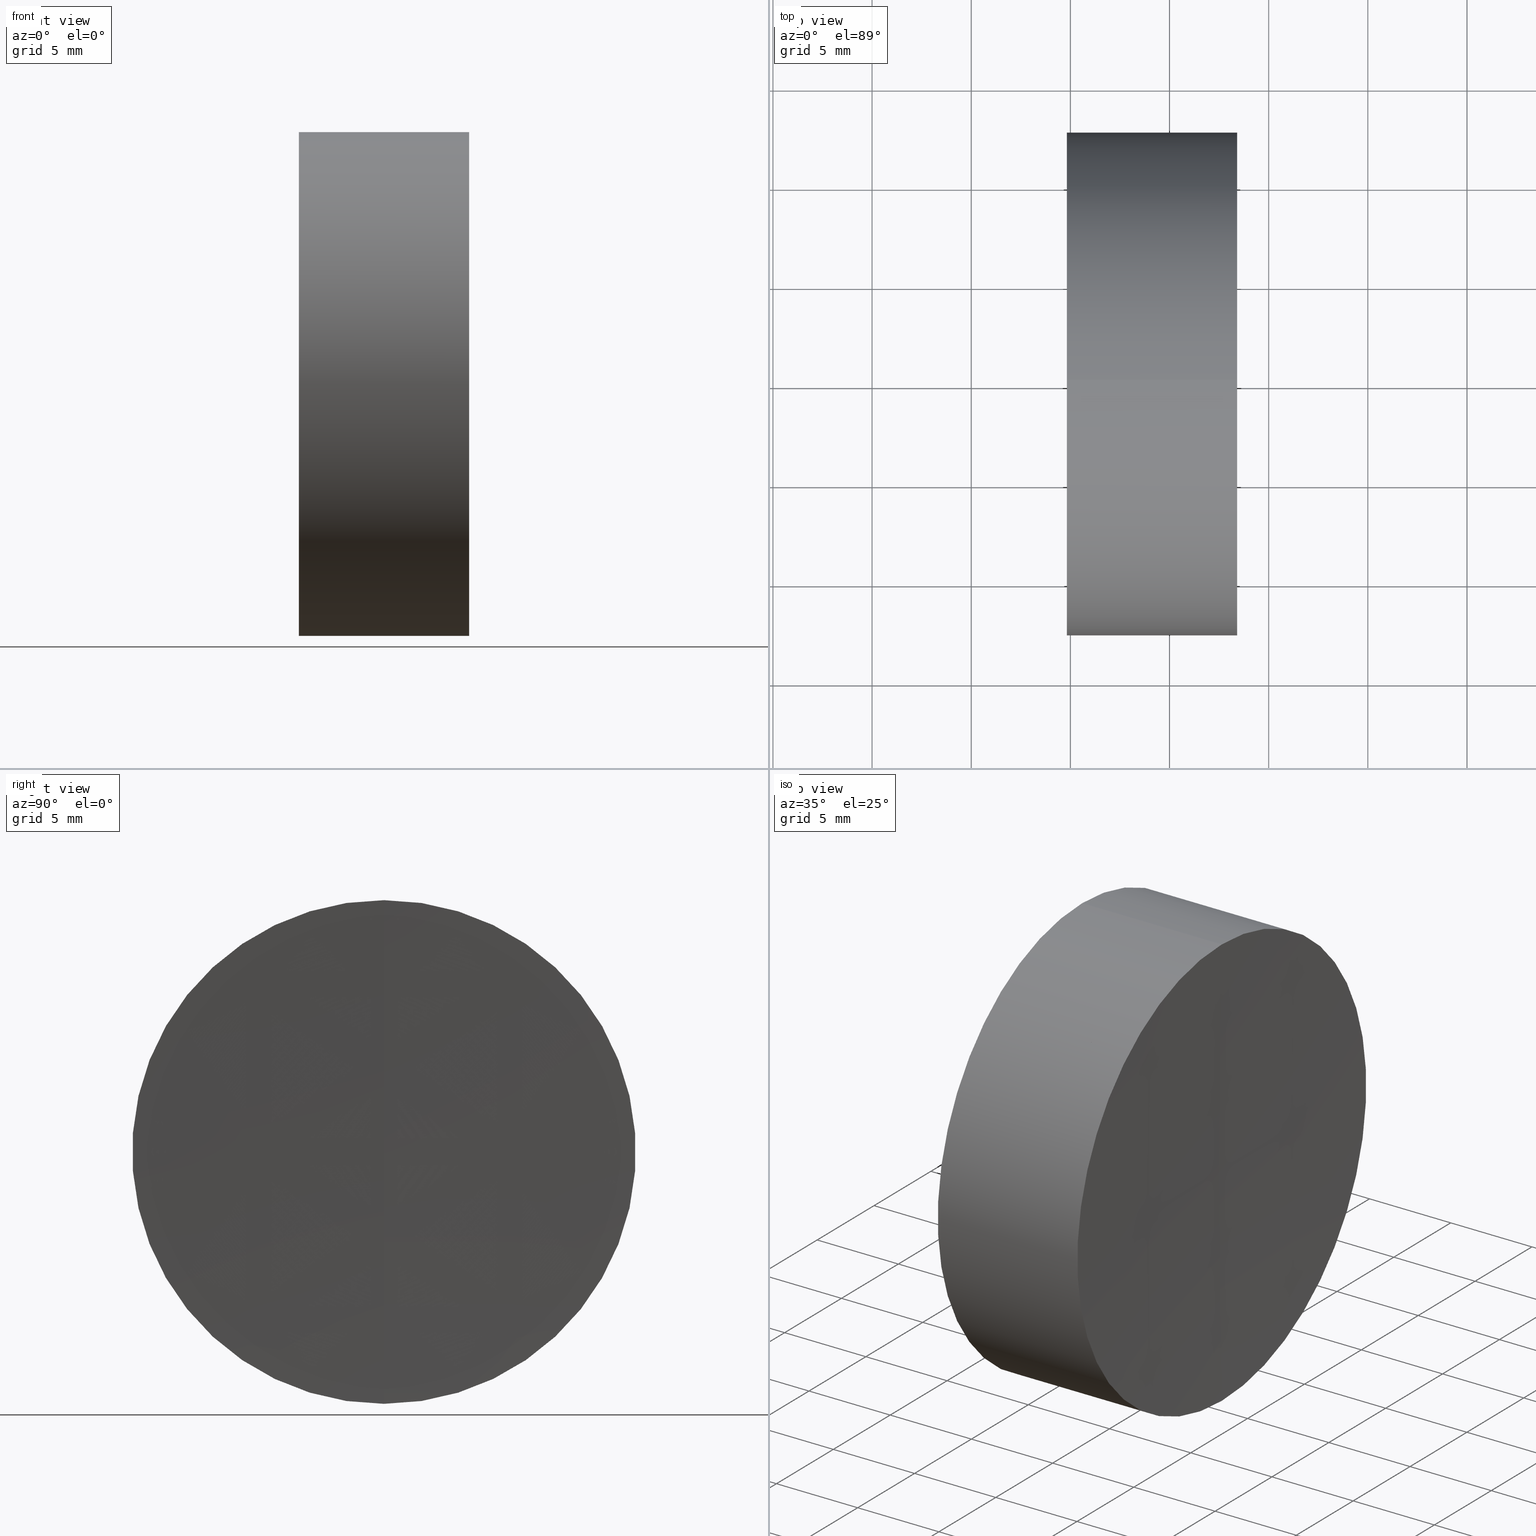
[diagram: canonical four-view strip — front | top / right | iso, engineering-drawing reading convention]
A machine part, canonical four-view strip (front | top / right | iso — engineering-drawing reading convention). The complete STEP part file that produces these views, byte-faithful:
ISO-10303-21;
HEADER;
FILE_DESCRIPTION (( 'STEP AP214' ),
    '1' );
FILE_NAME ('145199.STEP',
    '2019-06-13T07:30:03',
    ( 'user' ),
    ( '΢���й�' ),
    'SwSTEP 2.0',
    'SolidWorks 2016',
    '' );
FILE_SCHEMA (( 'AUTOMOTIVE_DESIGN' ));
ENDSEC;

DATA;
#1 =( GEOMETRIC_REPRESENTATION_CONTEXT ( 3 ) GLOBAL_UNCERTAINTY_ASSIGNED_CONTEXT ( ( #324 ) ) GLOBAL_UNIT_ASSIGNED_CONTEXT ( ( #274, #157, #343 ) ) REPRESENTATION_CONTEXT ( 'NONE', 'WORKASPACE' ) );
#2 = SPHERICAL_SURFACE ( 'NONE', #118, 39.20000000000038700 ) ;
#3 = DIRECTION ( 'NONE',  ( -0.0000000000000000000, -1.000000000000000000, -0.0000000000000000000 ) ) ;
#4 = VERTEX_POINT ( 'NONE', #312 ) ;
#5 = DIRECTION ( 'NONE',  ( -1.000000000000000000, -0.0000000000000000000, -0.0000000000000000000 ) ) ;
#6 = ORIENTED_EDGE ( 'NONE', *, *, #142, .T. ) ;
#7 = VERTEX_POINT ( 'NONE', #134 ) ;
#8 = ADVANCED_FACE ( 'NONE', ( #127 ), #54, .F. ) ;
#9 = AXIS2_PLACEMENT_3D ( 'NONE', #70, #3, #194 ) ;
#10 = ORIENTED_EDGE ( 'NONE', *, *, #331, .T. ) ;
#11 = EDGE_LOOP ( 'NONE', ( #169, #27, #50 ) ) ;
#12 =( GEOMETRIC_REPRESENTATION_CONTEXT ( 3 ) GLOBAL_UNCERTAINTY_ASSIGNED_CONTEXT ( ( #147 ) ) GLOBAL_UNIT_ASSIGNED_CONTEXT ( ( #317, #242, #112 ) ) REPRESENTATION_CONTEXT ( 'NONE', 'WORKASPACE' ) );
#13 = EDGE_LOOP ( 'NONE', ( #109, #281, #149 ) ) ;
#14 = VERTEX_POINT ( 'NONE', #186 ) ;
#15 = DIRECTION ( 'NONE',  ( -0.0000000000000000000, -1.000000000000000000, -0.0000000000000000000 ) ) ;
#16 = CARTESIAN_POINT ( 'NONE',  ( 298.1472495702503800, 0.0000000000000000000, 3.471135893147563700E-022 ) ) ;
#17 = CIRCLE ( 'NONE', #82, 12.69999999999999900 ) ;
#18 = MECHANICAL_DESIGN_GEOMETRIC_PRESENTATION_REPRESENTATION (  '', ( #46 ), #1 ) ;
#19 = CARTESIAN_POINT ( 'NONE',  ( 263.2472495702499500, 0.0000000000000000000, -2.999160011111868400E-014 ) ) ;
#20 = ADVANCED_FACE ( 'NONE', ( #63 ), #75, .F. ) ;
#21 = ORIENTED_EDGE ( 'NONE', *, *, #305, .F. ) ;
#22 = CARTESIAN_POINT ( 'NONE',  ( 0.0000000000000000000, 0.0000000000000000000, 0.0000000000000000000 ) ) ;
#23 = CARTESIAN_POINT ( 'NONE',  ( 254.8214953252485500, 0.0000000000000000000, 12.69999999999999900 ) ) ;
#24 = EDGE_CURVE ( 'NONE', #171, #146, #121, .T. ) ;
#25 = CARTESIAN_POINT ( 'NONE',  ( 254.8214953252485500, 0.0000000000000000000, 0.0000000000000000000 ) ) ;
#26 = DIRECTION ( 'NONE',  ( -1.000000000000000000, -0.0000000000000000000, -0.0000000000000000000 ) ) ;
#27 = ORIENTED_EDGE ( 'NONE', *, *, #175, .T. ) ;
#28 = AXIS2_PLACEMENT_3D ( 'NONE', #311, #154, #51 ) ;
#29 = FILL_AREA_STYLE_COLOUR ( '', #265 ) ;
#30 = PRODUCT_DEFINITION_CONTEXT ( 'detailed design', #64, 'design' ) ;
#31 = VERTEX_POINT ( 'NONE', #57 ) ;
#32 = DIRECTION ( 'NONE',  ( -1.000000000000000000, -0.0000000000000000000, 1.836970198721029700E-016 ) ) ;
#33 = EDGE_LOOP ( 'NONE', ( #21, #271, #258 ) ) ;
#34 = LINE ( 'NONE', #319, #101 ) ;
#35 = DIRECTION ( 'NONE',  ( 2.249639673992786400E-032, 1.000000000000000000, 1.224646799147353200E-016 ) ) ;
#36 = MECHANICAL_DESIGN_GEOMETRIC_PRESENTATION_REPRESENTATION (  '', ( #322 ), #12 ) ;
#37 = FILL_AREA_STYLE_COLOUR ( '', #278 ) ;
#38 = CLOSED_SHELL ( 'NONE', ( #178, #153, #79, #307, #98, #8 ) ) ;
#39 = SPHERICAL_SURFACE ( 'NONE', #287, 39.20000000000038700 ) ;
#40 = ORIENTED_EDGE ( 'NONE', *, *, #124, .F. ) ;
#41 = AXIS2_PLACEMENT_3D ( 'NONE', #115, #325, #93 ) ;
#42 = SPHERICAL_SURFACE ( 'NONE', #240, 39.20000000000040100 ) ;
#43 = EDGE_CURVE ( 'NONE', #31, #86, #150, .T. ) ;
#44 = ORIENTED_EDGE ( 'NONE', *, *, #222, .T. ) ;
#45 = SPHERICAL_SURFACE ( 'NONE', #303, 39.20000000000040100 ) ;
#46 = STYLED_ITEM ( 'NONE', ( #218 ), #250 ) ;
#47 = SURFACE_STYLE_USAGE ( .BOTH. , #292 ) ;
#48 = DIRECTION ( 'NONE',  ( -1.000000000000000000, -0.0000000000000000000, 1.836970198721029700E-016 ) ) ;
#49 = DIRECTION ( 'NONE',  ( 0.0000000000000000000, 0.0000000000000000000, 1.000000000000000000 ) ) ;
#50 = ORIENTED_EDGE ( 'NONE', *, *, #198, .F. ) ;
#51 = DIRECTION ( 'NONE',  ( 0.0000000000000000000, 0.0000000000000000000, 1.000000000000000000 ) ) ;
#52 = EDGE_CURVE ( 'NONE', #31, #326, #106, .T. ) ;
#53 = DIRECTION ( 'NONE',  ( -0.0000000000000000000, -1.000000000000000000, -0.0000000000000000000 ) ) ;
#54 = SPHERICAL_SURFACE ( 'NONE', #183, 489.8000000000000700 ) ;
#55 = PRODUCT_DEFINITION_SHAPE ( 'NONE', 'NONE',  #201 ) ;
#56 = PRESENTATION_LAYER_ASSIGNMENT (  '', '', ( #322 ) ) ;
#57 = CARTESIAN_POINT ( 'NONE',  ( 263.4119260896008000, 0.0000000000000000000, 12.69999999999999900 ) ) ;
#58 = ORIENTED_EDGE ( 'NONE', *, *, #232, .F. ) ;
#59 = DIRECTION ( 'NONE',  ( 0.0000000000000000000, 0.0000000000000000000, -1.000000000000000000 ) ) ;
#60 = UNCERTAINTY_MEASURE_WITH_UNIT (LENGTH_MEASURE( 1.000000000000000100E-005 ), #270, 'distance_accuracy_value', 'NONE');
#61 = CARTESIAN_POINT ( 'NONE',  ( 261.0615380360216000, -1.555301434917140400E-015, 12.70000000000001700 ) ) ;
#62 = CARTESIAN_POINT ( 'NONE',  ( 254.8214953252485500, 1.555301434917138400E-015, -12.69999999999999900 ) ) ;
#63 = FACE_OUTER_BOUND ( 'NONE', #78, .T. ) ;
#64 = APPLICATION_CONTEXT ( 'automotive_design' ) ;
#65 = DIRECTION ( 'NONE',  ( 0.0000000000000000000, 0.0000000000000000000, 1.000000000000000000 ) ) ;
#66 = EDGE_CURVE ( 'NONE', #31, #111, #17, .T. ) ;
#67 = CARTESIAN_POINT ( 'NONE',  ( -0.8160621761658039000, 0.0000000000000000000, 0.0000000000000000000 ) ) ;
#68 = AXIS2_PLACEMENT_3D ( 'NONE', #16, #179, #335 ) ;
#69 = FACE_OUTER_BOUND ( 'NONE', #11, .T. ) ;
#70 = CARTESIAN_POINT ( 'NONE',  ( 753.0472495702500700, 0.0000000000000000000, 0.0000000000000000000 ) ) ;
#71 = DIRECTION ( 'NONE',  ( 0.0000000000000000000, 0.0000000000000000000, -1.000000000000000000 ) ) ;
#72 = ORIENTED_EDGE ( 'NONE', *, *, #66, .T. ) ;
#73 = ORIENTED_EDGE ( 'NONE', *, *, #314, .T. ) ;
#74 = AXIS2_PLACEMENT_3D ( 'NONE', #129, #80, #309 ) ;
#75 = SPHERICAL_SURFACE ( 'NONE', #28, 39.00000000000001400 ) ;
#76 = CLOSED_SHELL ( 'NONE', ( #180, #131, #268, #20, #208, #238 ) ) ;
#77 = AXIS2_PLACEMENT_3D ( 'NONE', #297, #277, #65 ) ;
#78 = EDGE_LOOP ( 'NONE', ( #195, #126, #125 ) ) ;
#79 = ADVANCED_FACE ( 'NONE', ( #69 ), #45, .T. ) ;
#80 = DIRECTION ( 'NONE',  ( -1.000000000000000000, -0.0000000000000000000, 1.836970198721029700E-016 ) ) ;
#81 = FACE_OUTER_BOUND ( 'NONE', #13, .T. ) ;
#82 = AXIS2_PLACEMENT_3D ( 'NONE', #272, #217, #243 ) ;
#83 = DIRECTION ( 'NONE',  ( -1.000000000000000000, -0.0000000000000000000, 1.836970198721029700E-016 ) ) ;
#84 = CARTESIAN_POINT ( 'NONE',  ( 298.1472495702503800, 0.0000000000000000000, 3.471135893147563700E-022 ) ) ;
#85 = FACE_OUTER_BOUND ( 'NONE', #251, .T. ) ;
#86 = VERTEX_POINT ( 'NONE', #19 ) ;
#87 = AXIS2_PLACEMENT_3D ( 'NONE', #197, #35, #119 ) ;
#88 = UNCERTAINTY_MEASURE_WITH_UNIT (LENGTH_MEASURE( 1.000000000000000100E-005 ), #291, 'distance_accuracy_value', 'NONE');
#89 = DIRECTION ( 'NONE',  ( 1.878145495644173900E-016, 0.0000000000000000000, 1.000000000000000000 ) ) ;
#90 = DIRECTION ( 'NONE',  ( 0.0000000000000000000, -1.000000000000000000, -1.224646799147353200E-016 ) ) ;
#91 = EDGE_CURVE ( 'NONE', #146, #14, #230, .T. ) ;
#92 = AXIS2_PLACEMENT_3D ( 'NONE', #138, #26, #159 ) ;
#93 = DIRECTION ( 'NONE',  ( 0.0000000000000000000, 0.0000000000000000000, 1.000000000000000000 ) ) ;
#94 = ORIENTED_EDGE ( 'NONE', *, *, #222, .F. ) ;
#95 = VECTOR ( 'NONE', #289, 1000.000000000000000 ) ;
#96 = AXIS2_PLACEMENT_3D ( 'NONE', #67, #32, #89 ) ;
#97 = ORIENTED_EDGE ( 'NONE', *, *, #52, .T. ) ;
#98 = ADVANCED_FACE ( 'NONE', ( #304 ), #338, .T. ) ;
#99 = ORIENTED_EDGE ( 'NONE', *, *, #337, .T. ) ;
#100 = FILL_AREA_STYLE_COLOUR ( '', #263 ) ;
#101 = VECTOR ( 'NONE', #83, 1000.000000000000000 ) ;
#102 = DIRECTION ( 'NONE',  ( 0.0000000000000000000, 0.0000000000000000000, -1.000000000000000000 ) ) ;
#103 = AXIS2_PLACEMENT_3D ( 'NONE', #299, #190, #248 ) ;
#104 = DIRECTION ( 'NONE',  ( -1.000000000000000000, -0.0000000000000000000, -0.0000000000000000000 ) ) ;
#105 = CARTESIAN_POINT ( 'NONE',  ( 263.4119260896008000, 1.555301434917138400E-015, -12.69999999999999900 ) ) ;
#106 = LINE ( 'NONE', #23, #95 ) ;
#107 = CARTESIAN_POINT ( 'NONE',  ( 298.1472495702503800, 0.0000000000000000000, 3.471135893147563700E-022 ) ) ;
#108 = DIRECTION ( 'NONE',  ( -0.0000000000000000000, -1.000000000000000000, -0.0000000000000000000 ) ) ;
#109 = ORIENTED_EDGE ( 'NONE', *, *, #24, .F. ) ;
#110 = CIRCLE ( 'NONE', #225, 12.69999999999999900 ) ;
#111 = VERTEX_POINT ( 'NONE', #105 ) ;
#112 =( NAMED_UNIT ( * ) SI_UNIT ( $, .STERADIAN. ) SOLID_ANGLE_UNIT ( ) );
#113 = SURFACE_SIDE_STYLE ('',( #185 ) ) ;
#114 = CYLINDRICAL_SURFACE ( 'NONE', #103, 12.69999999999999900 ) ;
#115 = CARTESIAN_POINT ( 'NONE',  ( 217.9472495702503900, 0.0000000000000000000, -7.774854966861718100E-022 ) ) ;
#116 = FILL_AREA_STYLE ('',( #100 ) ) ;
#117 = DIRECTION ( 'NONE',  ( 0.0000000000000000000, 1.224646799147353200E-016, -1.000000000000000000 ) ) ;
#118 = AXIS2_PLACEMENT_3D ( 'NONE', #224, #255, #253 ) ;
#119 = DIRECTION ( 'NONE',  ( 0.0000000000000000000, -1.224646799147353200E-016, 1.000000000000000000 ) ) ;
#120 = PRESENTATION_STYLE_ASSIGNMENT (( #47 ) ) ;
#121 = CIRCLE ( 'NONE', #211, 12.70000000000004700 ) ;
#122 = PRODUCT_DEFINITION_FORMATION_WITH_SPECIFIED_SOURCE ( '�κ�', '', #210, .NOT_KNOWN. ) ;
#123 = CIRCLE ( 'NONE', #260, 12.70000000000004700 ) ;
#124 = EDGE_CURVE ( 'NONE', #4, #173, #215, .T. ) ;
#125 = ORIENTED_EDGE ( 'NONE', *, *, #206, .T. ) ;
#126 = ORIENTED_EDGE ( 'NONE', *, *, #232, .T. ) ;
#127 = FACE_OUTER_BOUND ( 'NONE', #321, .T. ) ;
#128 = CARTESIAN_POINT ( 'NONE',  ( -0.8160621761658015700, 0.0000000000000000000, 12.70000000000004700 ) ) ;
#129 = CARTESIAN_POINT ( 'NONE',  ( -0.8160621761658039000, 0.0000000000000000000, 0.0000000000000000000 ) ) ;
#130 = CARTESIAN_POINT ( 'NONE',  ( 753.0472495702500700, 0.0000000000000000000, 0.0000000000000000000 ) ) ;
#131 = ADVANCED_FACE ( 'NONE', ( #333 ), #191, .T. ) ;
#132 = AXIS2_PLACEMENT_3D ( 'NONE', #161, #221, #347 ) ;
#133 = CARTESIAN_POINT ( 'NONE',  ( 261.0615380360216000, 0.0000000000000000000, -4.810613473023683200E-014 ) ) ;
#134 = CARTESIAN_POINT ( 'NONE',  ( 261.0615380360216000, 0.0000000000000000000, -12.70000000000001700 ) ) ;
#135 = EDGE_CURVE ( 'NONE', #7, #326, #176, .T. ) ;
#136 = CARTESIAN_POINT ( 'NONE',  ( 261.0615380360216000, 1.555301434917144500E-015, -12.70000000000009700 ) ) ;
#137 = ORIENTED_EDGE ( 'NONE', *, *, #295, .F. ) ;
#138 = CARTESIAN_POINT ( 'NONE',  ( 261.0615380360216000, 0.0000000000000000000, 0.0000000000000000000 ) ) ;
#139 =( GEOMETRIC_REPRESENTATION_CONTEXT ( 3 ) GLOBAL_UNCERTAINTY_ASSIGNED_CONTEXT ( ( #88 ) ) GLOBAL_UNIT_ASSIGNED_CONTEXT ( ( #291, #332, #296 ) ) REPRESENTATION_CONTEXT ( 'NONE', 'WORKASPACE' ) );
#140 = APPLICATION_PROTOCOL_DEFINITION ( 'draft international standard', 'automotive_design', 1998, #189 ) ;
#141 = CARTESIAN_POINT ( 'NONE',  ( 298.1472495702503800, 0.0000000000000000000, 3.471135893147563700E-022 ) ) ;
#142 = EDGE_CURVE ( 'NONE', #111, #86, #285, .T. ) ;
#143 = DIRECTION ( 'NONE',  ( 0.0000000000000000000, 0.0000000000000000000, 1.000000000000000000 ) ) ;
#144 = EDGE_LOOP ( 'NONE', ( #145, #44, #193 ) ) ;
#145 = ORIENTED_EDGE ( 'NONE', *, *, #175, .F. ) ;
#146 = VERTEX_POINT ( 'NONE', #136 ) ;
#147 = UNCERTAINTY_MEASURE_WITH_UNIT (LENGTH_MEASURE( 1.000000000000000100E-005 ), #317, 'distance_accuracy_value', 'NONE');
#148 = AXIS2_PLACEMENT_3D ( 'NONE', #199, #163, #71 ) ;
#149 = ORIENTED_EDGE ( 'NONE', *, *, #91, .F. ) ;
#150 = CIRCLE ( 'NONE', #205, 489.8000000000000700 ) ;
#151 = DIRECTION ( 'NONE',  ( -2.249639673992786400E-032, -1.000000000000000000, -1.224646799147353200E-016 ) ) ;
#152 = CIRCLE ( 'NONE', #77, 39.20000000000040100 ) ;
#153 = ADVANCED_FACE ( 'NONE', ( #85 ), #114, .T. ) ;
#154 = DIRECTION ( 'NONE',  ( -0.0000000000000000000, 1.000000000000000000, 0.0000000000000000000 ) ) ;
#155 = EDGE_LOOP ( 'NONE', ( #181, #73, #308, #235 ) ) ;
#156 = AXIS2_PLACEMENT_3D ( 'NONE', #22, #187, #342 ) ;
#157 =( NAMED_UNIT ( * ) PLANE_ANGLE_UNIT ( ) SI_UNIT ( $, .RADIAN. ) );
#158 = FILL_AREA_STYLE ('',( #37 ) ) ;
#159 = DIRECTION ( 'NONE',  ( 0.0000000000000000000, 0.0000000000000000000, 1.000000000000000000 ) ) ;
#160 = CIRCLE ( 'NONE', #318, 39.20000000000040100 ) ;
#161 = CARTESIAN_POINT ( 'NONE',  ( 254.8214953252485500, 0.0000000000000000000, -4.695985748039317800E-014 ) ) ;
#162 =( NAMED_UNIT ( * ) SI_UNIT ( $, .STERADIAN. ) SOLID_ANGLE_UNIT ( ) );
#163 = DIRECTION ( 'NONE',  ( 0.0000000000000000000, -1.000000000000000000, 0.0000000000000000000 ) ) ;
#164 = AXIS2_PLACEMENT_3D ( 'NONE', #202, #5, #320 ) ;
#165 = DIRECTION ( 'NONE',  ( 0.0000000000000000000, 0.0000000000000000000, 1.000000000000000000 ) ) ;
#166 = DIRECTION ( 'NONE',  ( 0.0000000000000000000, 1.000000000000000000, -0.0000000000000000000 ) ) ;
#167 = CARTESIAN_POINT ( 'NONE',  ( 254.8214953252485500, 0.0000000000000000000, 12.69999999999999900 ) ) ;
#168 = EDGE_CURVE ( 'NONE', #341, #4, #313, .T. ) ;
#169 = ORIENTED_EDGE ( 'NONE', *, *, #135, .T. ) ;
#170 = SHAPE_DEFINITION_REPRESENTATION ( #55, #244 ) ;
#171 = VERTEX_POINT ( 'NONE', #226 ) ;
#172 = MECHANICAL_DESIGN_GEOMETRIC_PRESENTATION_REPRESENTATION (  '', ( #276 ), #139 ) ;
#173 = VERTEX_POINT ( 'NONE', #167 ) ;
#174 = FACE_OUTER_BOUND ( 'NONE', #144, .T. ) ;
#175 = EDGE_CURVE ( 'NONE', #326, #293, #160, .T. ) ;
#176 = CIRCLE ( 'NONE', #92, 12.69999999999999900 ) ;
#177 = FACE_OUTER_BOUND ( 'NONE', #231, .T. ) ;
#178 = ADVANCED_FACE ( 'NONE', ( #177 ), #204, .F. ) ;
#179 = DIRECTION ( 'NONE',  ( -0.0000000000000000000, 1.000000000000000000, 0.0000000000000000000 ) ) ;
#180 = ADVANCED_FACE ( 'NONE', ( #81 ), #2, .F. ) ;
#181 = ORIENTED_EDGE ( 'NONE', *, *, #24, .T. ) ;
#182 = DIRECTION ( 'NONE',  ( 0.0000000000000000000, 1.224646799147353200E-016, -1.000000000000000000 ) ) ;
#183 = AXIS2_PLACEMENT_3D ( 'NONE', #339, #53, #184 ) ;
#184 = DIRECTION ( 'NONE',  ( 0.0000000000000000000, 0.0000000000000000000, -1.000000000000000000 ) ) ;
#185 = SURFACE_STYLE_FILL_AREA ( #249 ) ;
#186 = CARTESIAN_POINT ( 'NONE',  ( 258.9472495702499900, 0.0000000000000000000, 4.800615799771260600E-015 ) ) ;
#187 = DIRECTION ( 'NONE',  ( 0.0000000000000000000, 0.0000000000000000000, 1.000000000000000000 ) ) ;
#188 = ORIENTED_EDGE ( 'NONE', *, *, #142, .F. ) ;
#189 = APPLICATION_CONTEXT ( 'automotive_design' ) ;
#190 = DIRECTION ( 'NONE',  ( -1.000000000000000000, -0.0000000000000000000, -0.0000000000000000000 ) ) ;
#191 = CYLINDRICAL_SURFACE ( 'NONE', #74, 12.70000000000004700 ) ;
#192 = AXIS2_PLACEMENT_3D ( 'NONE', #25, #213, #49 ) ;
#193 = ORIENTED_EDGE ( 'NONE', *, *, #198, .T. ) ;
#194 = DIRECTION ( 'NONE',  ( 0.0000000000000000000, 0.0000000000000000000, -1.000000000000000000 ) ) ;
#195 = ORIENTED_EDGE ( 'NONE', *, *, #168, .F. ) ;
#196 = CARTESIAN_POINT ( 'NONE',  ( 263.4119260896008000, 0.0000000000000000000, 0.0000000000000000000 ) ) ;
#197 = CARTESIAN_POINT ( 'NONE',  ( 217.9472495702503900, 0.0000000000000000000, -7.774854966861718100E-022 ) ) ;
#198 = EDGE_CURVE ( 'NONE', #7, #293, #152, .T. ) ;
#199 = CARTESIAN_POINT ( 'NONE',  ( 217.9472495702503900, 0.0000000000000000000, -7.774854966861718100E-022 ) ) ;
#200 = EDGE_LOOP ( 'NONE', ( #137, #99, #97, #269 ) ) ;
#201 = PRODUCT_DEFINITION ( 'δ֪', '', #122, #30 ) ;
#202 = CARTESIAN_POINT ( 'NONE',  ( 261.0615380360216000, 0.0000000000000000000, 0.0000000000000000000 ) ) ;
#203 = SURFACE_STYLE_FILL_AREA ( #158 ) ;
#204 = SPHERICAL_SURFACE ( 'NONE', #9, 489.8000000000000700 ) ;
#205 = AXIS2_PLACEMENT_3D ( 'NONE', #130, #336, #182 ) ;
#206 = EDGE_CURVE ( 'NONE', #173, #4, #275, .T. ) ;
#207 = SPHERICAL_SURFACE ( 'NONE', #41, 39.00000000000001400 ) ;
#208 = ADVANCED_FACE ( 'NONE', ( #223 ), #247, .T. ) ;
#209 = DIRECTION ( 'NONE',  ( 0.0000000000000000000, 0.0000000000000000000, 1.000000000000000000 ) ) ;
#210 = PRODUCT ( '145199', '145199', '', ( #273 ) ) ;
#211 = AXIS2_PLACEMENT_3D ( 'NONE', #133, #214, #266 ) ;
#212 = DIRECTION ( 'NONE',  ( -1.000000000000000000, -0.0000000000000000000, 1.836970198721029700E-016 ) ) ;
#213 = DIRECTION ( 'NONE',  ( -1.000000000000000000, -0.0000000000000000000, -0.0000000000000000000 ) ) ;
#214 = DIRECTION ( 'NONE',  ( -1.000000000000000000, -0.0000000000000000000, 1.836970198721029700E-016 ) ) ;
#215 = CIRCLE ( 'NONE', #229, 12.70000000000004500 ) ;
#216 = ORIENTED_EDGE ( 'NONE', *, *, #337, .F. ) ;
#217 = DIRECTION ( 'NONE',  ( -1.000000000000000000, -0.0000000000000000000, -0.0000000000000000000 ) ) ;
#218 = PRESENTATION_STYLE_ASSIGNMENT (( #282 ) ) ;
#219 = DIRECTION ( 'NONE',  ( -0.0000000000000000000, -1.000000000000000000, -0.0000000000000000000 ) ) ;
#220 = CARTESIAN_POINT ( 'NONE',  ( 256.9472495702503900, 0.0000000000000000000, -4.776123294160174900E-015 ) ) ;
#221 = DIRECTION ( 'NONE',  ( -1.000000000000000000, -0.0000000000000000000, 1.836970198721029700E-016 ) ) ;
#222 = EDGE_CURVE ( 'NONE', #326, #7, #259, .T. ) ;
#223 = FACE_OUTER_BOUND ( 'NONE', #298, .T. ) ;
#224 = CARTESIAN_POINT ( 'NONE',  ( 298.1472495702503800, 0.0000000000000000000, 3.471135893147563700E-022 ) ) ;
#225 = AXIS2_PLACEMENT_3D ( 'NONE', #196, #104, #165 ) ;
#226 = CARTESIAN_POINT ( 'NONE',  ( 261.0615380360216000, 0.0000000000000000000, 12.69999999999999900 ) ) ;
#227 = CARTESIAN_POINT ( 'NONE',  ( 258.9472495702499900, 0.0000000000000000000, -2.400307379215247300E-015 ) ) ;
#228 = ORIENTED_EDGE ( 'NONE', *, *, #295, .T. ) ;
#229 = AXIS2_PLACEMENT_3D ( 'NONE', #237, #48, #316 ) ;
#230 = CIRCLE ( 'NONE', #68, 39.20000000000038700 ) ;
#231 = EDGE_LOOP ( 'NONE', ( #306, #239, #188 ) ) ;
#232 = EDGE_CURVE ( 'NONE', #341, #173, #344, .T. ) ;
#233 = PRODUCT_RELATED_PRODUCT_CATEGORY ( 'part', '', ( #210 ) ) ;
#234 = DIRECTION ( 'NONE',  ( -1.000000000000000000, -0.0000000000000000000, 1.836970198721029700E-016 ) ) ;
#235 = ORIENTED_EDGE ( 'NONE', *, *, #345, .F. ) ;
#236 = LINE ( 'NONE', #128, #302 ) ;
#237 = CARTESIAN_POINT ( 'NONE',  ( 254.8214953252485500, 0.0000000000000000000, -4.695985748039317800E-014 ) ) ;
#238 = ADVANCED_FACE ( 'NONE', ( #261 ), #39, .F. ) ;
#239 = ORIENTED_EDGE ( 'NONE', *, *, #43, .T. ) ;
#240 = AXIS2_PLACEMENT_3D ( 'NONE', #340, #15, #102 ) ;
#241 = PRESENTATION_STYLE_ASSIGNMENT (( #294 ) ) ;
#242 =( NAMED_UNIT ( * ) PLANE_ANGLE_UNIT ( ) SI_UNIT ( $, .RADIAN. ) );
#243 = DIRECTION ( 'NONE',  ( 0.0000000000000000000, 0.0000000000000000000, 1.000000000000000000 ) ) ;
#244 = ADVANCED_BREP_SHAPE_REPRESENTATION ( '145199', ( #301, #250, #156 ), #290 ) ;
#245 = EDGE_LOOP ( 'NONE', ( #58, #315, #286 ) ) ;
#246 = DIRECTION ( 'NONE',  ( 0.0000000000000000000, 0.0000000000000000000, -1.000000000000000000 ) ) ;
#247 = CYLINDRICAL_SURFACE ( 'NONE', #96, 12.70000000000004700 ) ;
#248 = DIRECTION ( 'NONE',  ( 0.0000000000000000000, 0.0000000000000000000, 1.000000000000000000 ) ) ;
#249 = FILL_AREA_STYLE ('',( #29 ) ) ;
#250 = MANIFOLD_SOLID_BREP ( '��ת3', #38 ) ;
#251 = EDGE_LOOP ( 'NONE', ( #72, #228, #94, #330 ) ) ;
#252 = APPLICATION_PROTOCOL_DEFINITION ( 'draft international standard', 'automotive_design', 1998, #64 ) ;
#253 = DIRECTION ( 'NONE',  ( 0.0000000000000000000, 0.0000000000000000000, -1.000000000000000000 ) ) ;
#254 = CIRCLE ( 'NONE', #279, 39.20000000000038700 ) ;
#255 = DIRECTION ( 'NONE',  ( -0.0000000000000000000, -1.000000000000000000, -0.0000000000000000000 ) ) ;
#256 = LINE ( 'NONE', #62, #267 ) ;
#257 = SURFACE_SIDE_STYLE ('',( #203 ) ) ;
#258 = ORIENTED_EDGE ( 'NONE', *, *, #91, .T. ) ;
#259 = CIRCLE ( 'NONE', #164, 12.69999999999999900 ) ;
#260 = AXIS2_PLACEMENT_3D ( 'NONE', #264, #212, #209 ) ;
#261 = FACE_OUTER_BOUND ( 'NONE', #33, .T. ) ;
#262 = ORIENTED_EDGE ( 'NONE', *, *, #43, .F. ) ;
#263 = COLOUR_RGB ( '',1.000000000000000000, 1.000000000000000000, 1.000000000000000000 ) ;
#264 = CARTESIAN_POINT ( 'NONE',  ( 261.0615380360216000, 0.0000000000000000000, -4.810613473023683200E-014 ) ) ;
#265 = COLOUR_RGB ( '',1.000000000000000000, 1.000000000000000000, 1.000000000000000000 ) ;
#266 = DIRECTION ( 'NONE',  ( 0.0000000000000000000, 0.0000000000000000000, 1.000000000000000000 ) ) ;
#267 = VECTOR ( 'NONE', #280, 1000.000000000000000 ) ;
#268 = ADVANCED_FACE ( 'NONE', ( #283 ), #207, .F. ) ;
#269 = ORIENTED_EDGE ( 'NONE', *, *, #135, .F. ) ;
#270 =( LENGTH_UNIT ( ) NAMED_UNIT ( * ) SI_UNIT ( .MILLI., .METRE. ) );
#271 = ORIENTED_EDGE ( 'NONE', *, *, #331, .F. ) ;
#272 = CARTESIAN_POINT ( 'NONE',  ( 263.4119260896008000, 0.0000000000000000000, 0.0000000000000000000 ) ) ;
#273 = PRODUCT_CONTEXT ( 'NONE', #189, 'mechanical' ) ;
#274 =( LENGTH_UNIT ( ) NAMED_UNIT ( * ) SI_UNIT ( .MILLI., .METRE. ) );
#275 = CIRCLE ( 'NONE', #132, 12.70000000000004500 ) ;
#276 = STYLED_ITEM ( 'NONE', ( #241 ), #301 ) ;
#277 = DIRECTION ( 'NONE',  ( 0.0000000000000000000, 1.000000000000000000, -0.0000000000000000000 ) ) ;
#278 = COLOUR_RGB ( '',1.000000000000000000, 1.000000000000000000, 1.000000000000000000 ) ;
#279 = AXIS2_PLACEMENT_3D ( 'NONE', #107, #151, #346 ) ;
#280 = DIRECTION ( 'NONE',  ( -1.000000000000000000, -0.0000000000000000000, -0.0000000000000000000 ) ) ;
#281 = ORIENTED_EDGE ( 'NONE', *, *, #305, .T. ) ;
#282 = SURFACE_STYLE_USAGE ( .BOTH. , #257 ) ;
#283 = FACE_OUTER_BOUND ( 'NONE', #245, .T. ) ;
#284 = PRESENTATION_LAYER_ASSIGNMENT (  '', '', ( #276 ) ) ;
#285 = CIRCLE ( 'NONE', #329, 489.8000000000000700 ) ;
#286 = ORIENTED_EDGE ( 'NONE', *, *, #124, .T. ) ;
#287 = AXIS2_PLACEMENT_3D ( 'NONE', #300, #219, #246 ) ;
#288 =( NAMED_UNIT ( * ) PLANE_ANGLE_UNIT ( ) SI_UNIT ( $, .RADIAN. ) );
#289 = DIRECTION ( 'NONE',  ( -1.000000000000000000, -0.0000000000000000000, -0.0000000000000000000 ) ) ;
#290 =( GEOMETRIC_REPRESENTATION_CONTEXT ( 3 ) GLOBAL_UNCERTAINTY_ASSIGNED_CONTEXT ( ( #60 ) ) GLOBAL_UNIT_ASSIGNED_CONTEXT ( ( #270, #288, #162 ) ) REPRESENTATION_CONTEXT ( 'NONE', 'WORKASPACE' ) );
#291 =( LENGTH_UNIT ( ) NAMED_UNIT ( * ) SI_UNIT ( .MILLI., .METRE. ) );
#292 = SURFACE_SIDE_STYLE ('',( #327 ) ) ;
#293 = VERTEX_POINT ( 'NONE', #227 ) ;
#294 = SURFACE_STYLE_USAGE ( .BOTH. , #113 ) ;
#295 = EDGE_CURVE ( 'NONE', #111, #7, #256, .T. ) ;
#296 =( NAMED_UNIT ( * ) SI_UNIT ( $, .STERADIAN. ) SOLID_ANGLE_UNIT ( ) );
#297 = CARTESIAN_POINT ( 'NONE',  ( 298.1472495702503800, 0.0000000000000000000, 3.471135893147563700E-022 ) ) ;
#298 = EDGE_LOOP ( 'NONE', ( #328, #10, #310, #40 ) ) ;
#299 = CARTESIAN_POINT ( 'NONE',  ( 254.8214953252485500, 0.0000000000000000000, 0.0000000000000000000 ) ) ;
#300 = CARTESIAN_POINT ( 'NONE',  ( 298.1472495702503800, 0.0000000000000000000, 3.471135893147563700E-022 ) ) ;
#301 = MANIFOLD_SOLID_BREP ( '��ת1', #76 ) ;
#302 = VECTOR ( 'NONE', #234, 1000.000000000000000 ) ;
#303 = AXIS2_PLACEMENT_3D ( 'NONE', #84, #108, #59 ) ;
#304 = FACE_OUTER_BOUND ( 'NONE', #200, .T. ) ;
#305 = EDGE_CURVE ( 'NONE', #171, #14, #254, .T. ) ;
#306 = ORIENTED_EDGE ( 'NONE', *, *, #66, .F. ) ;
#307 = ADVANCED_FACE ( 'NONE', ( #174 ), #42, .T. ) ;
#308 = ORIENTED_EDGE ( 'NONE', *, *, #206, .F. ) ;
#309 = DIRECTION ( 'NONE',  ( 1.878145495644173900E-016, 0.0000000000000000000, 1.000000000000000000 ) ) ;
#310 = ORIENTED_EDGE ( 'NONE', *, *, #345, .T. ) ;
#311 = CARTESIAN_POINT ( 'NONE',  ( 217.9472495702503900, 0.0000000000000000000, -7.774854966861718100E-022 ) ) ;
#312 = CARTESIAN_POINT ( 'NONE',  ( 254.8214953252485500, 1.555301434917144200E-015, -12.70000000000005100 ) ) ;
#313 = CIRCLE ( 'NONE', #87, 39.00000000000001400 ) ;
#314 = EDGE_CURVE ( 'NONE', #146, #4, #34, .T. ) ;
#315 = ORIENTED_EDGE ( 'NONE', *, *, #168, .T. ) ;
#316 = DIRECTION ( 'NONE',  ( 0.0000000000000000000, 0.0000000000000000000, 1.000000000000000000 ) ) ;
#317 =( LENGTH_UNIT ( ) NAMED_UNIT ( * ) SI_UNIT ( .MILLI., .METRE. ) );
#318 = AXIS2_PLACEMENT_3D ( 'NONE', #141, #90, #117 ) ;
#319 = CARTESIAN_POINT ( 'NONE',  ( -0.8160621761658063400, 1.555301434917144500E-015, -12.70000000000004700 ) ) ;
#320 = DIRECTION ( 'NONE',  ( 0.0000000000000000000, 0.0000000000000000000, 1.000000000000000000 ) ) ;
#321 = EDGE_LOOP ( 'NONE', ( #262, #216, #6 ) ) ;
#322 = STYLED_ITEM ( 'NONE', ( #120 ), #244 ) ;
#323 = CARTESIAN_POINT ( 'NONE',  ( 753.0472495702500700, 0.0000000000000000000, 0.0000000000000000000 ) ) ;
#324 = UNCERTAINTY_MEASURE_WITH_UNIT (LENGTH_MEASURE( 1.000000000000000100E-005 ), #274, 'distance_accuracy_value', 'NONE');
#325 = DIRECTION ( 'NONE',  ( -0.0000000000000000000, 1.000000000000000000, 0.0000000000000000000 ) ) ;
#326 = VERTEX_POINT ( 'NONE', #61 ) ;
#327 = SURFACE_STYLE_FILL_AREA ( #116 ) ;
#328 = ORIENTED_EDGE ( 'NONE', *, *, #314, .F. ) ;
#329 = AXIS2_PLACEMENT_3D ( 'NONE', #323, #166, #143 ) ;
#330 = ORIENTED_EDGE ( 'NONE', *, *, #52, .F. ) ;
#331 = EDGE_CURVE ( 'NONE', #146, #171, #123, .T. ) ;
#332 =( NAMED_UNIT ( * ) PLANE_ANGLE_UNIT ( ) SI_UNIT ( $, .RADIAN. ) );
#333 = FACE_OUTER_BOUND ( 'NONE', #155, .T. ) ;
#334 = PRESENTATION_LAYER_ASSIGNMENT (  '', '', ( #46 ) ) ;
#335 = DIRECTION ( 'NONE',  ( 0.0000000000000000000, 0.0000000000000000000, 1.000000000000000000 ) ) ;
#336 = DIRECTION ( 'NONE',  ( 0.0000000000000000000, -1.000000000000000000, -1.224646799147353200E-016 ) ) ;
#337 = EDGE_CURVE ( 'NONE', #111, #31, #110, .T. ) ;
#338 = CYLINDRICAL_SURFACE ( 'NONE', #192, 12.69999999999999900 ) ;
#339 = CARTESIAN_POINT ( 'NONE',  ( 753.0472495702500700, 0.0000000000000000000, 0.0000000000000000000 ) ) ;
#340 = CARTESIAN_POINT ( 'NONE',  ( 298.1472495702503800, 0.0000000000000000000, 3.471135893147563700E-022 ) ) ;
#341 = VERTEX_POINT ( 'NONE', #220 ) ;
#342 = DIRECTION ( 'NONE',  ( 1.000000000000000000, 0.0000000000000000000, 0.0000000000000000000 ) ) ;
#343 =( NAMED_UNIT ( * ) SI_UNIT ( $, .STERADIAN. ) SOLID_ANGLE_UNIT ( ) );
#344 = CIRCLE ( 'NONE', #148, 39.00000000000001400 ) ;
#345 = EDGE_CURVE ( 'NONE', #171, #173, #236, .T. ) ;
#346 = DIRECTION ( 'NONE',  ( 0.0000000000000000000, 1.224646799147353200E-016, -1.000000000000000000 ) ) ;
#347 = DIRECTION ( 'NONE',  ( 0.0000000000000000000, 0.0000000000000000000, 1.000000000000000000 ) ) ;
ENDSEC;
END-ISO-10303-21;
